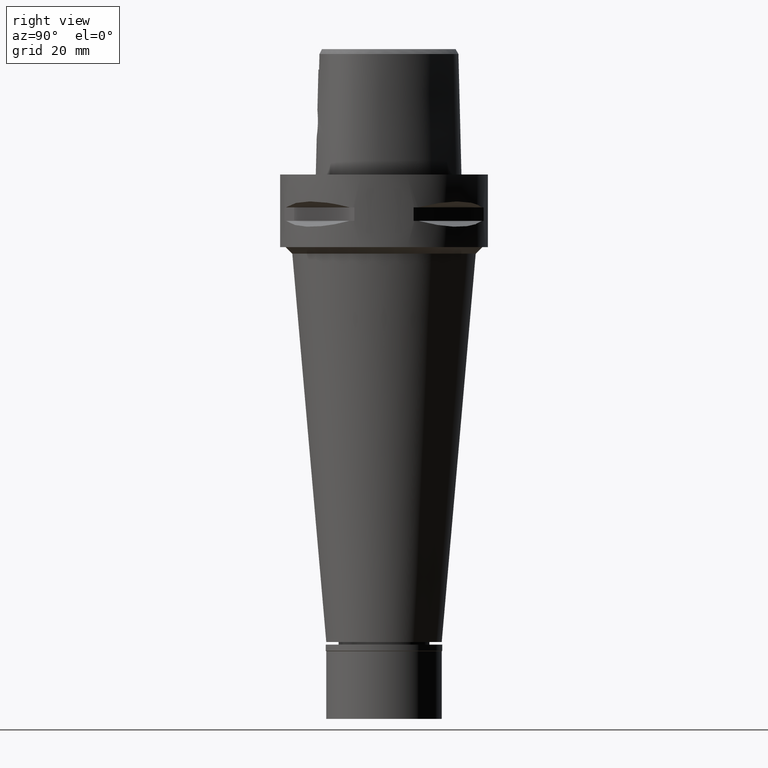
[diagram: clean part render]
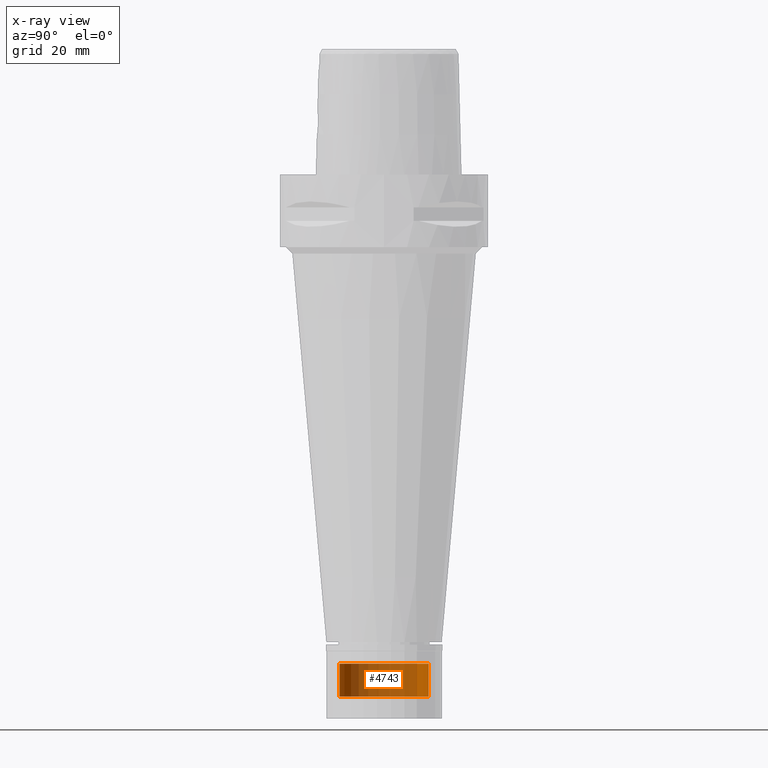
[diagram: x-ray — body ghosted, one internal face saturated and labeled with its STEP entity id]
A machine part, right view, then the same camera in x-ray: the body is ghosted and one INTERNAL B-rep face — a face not visible from any outside direction — is saturated and labeled: STEP entity #4743.
In plain terms, the highlighted cylindrical surface (partial cylindrical patch) has radius 13.5 mm, axis along (0, 0, -1).
Its self-contained STEP definition (entity closure, byte-faithful):
#17 = FACE_OUTER_BOUND ( 'NONE', #2816, .T. ) ;
#91 = DIRECTION ( 'NONE',  ( 0.0000000000000000000, 0.0000000000000000000, -1.000000000000000000 ) ) ;
#445 = DIRECTION ( 'NONE',  ( 0.0000000000000000000, -1.000000000000000000, 0.0000000000000000000 ) ) ;
#722 = CARTESIAN_POINT ( 'NONE',  ( 0.0000000000000000000, -13.50000000000000000, -148.2999999999999829 ) ) ;
#1014 = CIRCLE ( 'NONE', #4686, 13.50000000000000000 ) ;
#1201 = DIRECTION ( 'NONE',  ( 0.0000000000000000000, 0.0000000000000000000, -1.000000000000000000 ) ) ;
#1721 = VERTEX_POINT ( 'NONE', #3357 ) ;
#1977 = VECTOR ( 'NONE', #91, 1000.000000000000000 ) ;
#2020 = DIRECTION ( 'NONE',  ( 0.0000000000000000000, -1.000000000000000000, 0.0000000000000000000 ) ) ;
#2053 = AXIS2_PLACEMENT_3D ( 'NONE', #2404, #1201, #445 ) ;
#2191 = CARTESIAN_POINT ( 'NONE',  ( 0.0000000000000000000, 0.0000000000000000000, -158.2999999999999829 ) ) ;
#2318 = ORIENTED_EDGE ( 'NONE', *, *, #4869, .T. ) ;
#2342 = VERTEX_POINT ( 'NONE', #4796 ) ;
#2404 = CARTESIAN_POINT ( 'NONE',  ( 0.0000000000000000000, 0.0000000000000000000, 7.915000000000000036 ) ) ;
#2412 = ORIENTED_EDGE ( 'NONE', *, *, #2821, .T. ) ;
#2816 = EDGE_LOOP ( 'NONE', ( #2318, #2923, #2412, #2972 ) ) ;
#2819 = DIRECTION ( 'NONE',  ( 0.0000000000000000000, 0.0000000000000000000, -1.000000000000000000 ) ) ;
#2821 = EDGE_CURVE ( 'NONE', #2342, #3264, #3204, .T. ) ;
#2923 = ORIENTED_EDGE ( 'NONE', *, *, #4165, .F. ) ;
#2972 = ORIENTED_EDGE ( 'NONE', *, *, #3374, .T. ) ;
#3021 = CARTESIAN_POINT ( 'NONE',  ( 0.0000000000000000000, 13.50000000000000000, -158.2999999999999829 ) ) ;
#3068 = DIRECTION ( 'NONE',  ( 0.0000000000000000000, 1.000000000000000000, 0.0000000000000000000 ) ) ;
#3149 = CYLINDRICAL_SURFACE ( 'NONE', #2053, 13.50000000000000000 ) ;
#3204 = CIRCLE ( 'NONE', #4835, 13.50000000000000000 ) ;
#3264 = VERTEX_POINT ( 'NONE', #4917 ) ;
#3287 = VERTEX_POINT ( 'NONE', #3021 ) ;
#3310 = CARTESIAN_POINT ( 'NONE',  ( 0.0000000000000000000, 13.50000000000000000, -148.2999999999999829 ) ) ;
#3357 = CARTESIAN_POINT ( 'NONE',  ( 0.0000000000000000000, -13.50000000000000000, -158.2999999999999829 ) ) ;
#3374 = EDGE_CURVE ( 'NONE', #3264, #3287, #3612, .T. ) ;
#3592 = CARTESIAN_POINT ( 'NONE',  ( 0.0000000000000000000, 0.0000000000000000000, -148.2999999999999829 ) ) ;
#3612 = LINE ( 'NONE', #3310, #1977 ) ;
#3799 = VECTOR ( 'NONE', #4564, 1000.000000000000000 ) ;
#4165 = EDGE_CURVE ( 'NONE', #2342, #1721, #4540, .T. ) ;
#4540 = LINE ( 'NONE', #722, #3799 ) ;
#4564 = DIRECTION ( 'NONE',  ( 0.0000000000000000000, 0.0000000000000000000, -1.000000000000000000 ) ) ;
#4686 = AXIS2_PLACEMENT_3D ( 'NONE', #2191, #4799, #3068 ) ;
#4743 = ADVANCED_FACE ( 'NONE', ( #17 ), #3149, .T. ) ;
#4796 = CARTESIAN_POINT ( 'NONE',  ( 0.0000000000000000000, -13.50000000000000000, -148.2999999999999829 ) ) ;
#4799 = DIRECTION ( 'NONE',  ( 0.0000000000000000000, 0.0000000000000000000, 1.000000000000000000 ) ) ;
#4835 = AXIS2_PLACEMENT_3D ( 'NONE', #3592, #2819, #2020 ) ;
#4869 = EDGE_CURVE ( 'NONE', #3287, #1721, #1014, .T. ) ;
#4917 = CARTESIAN_POINT ( 'NONE',  ( 0.0000000000000000000, 13.50000000000000000, -148.2999999999999829 ) ) ;